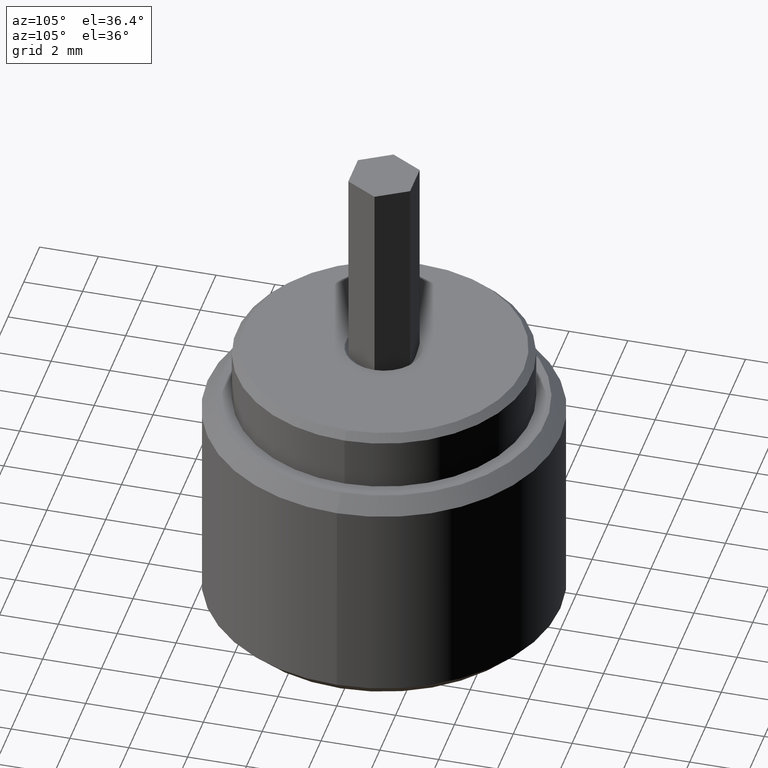
[diagram: clean part render]
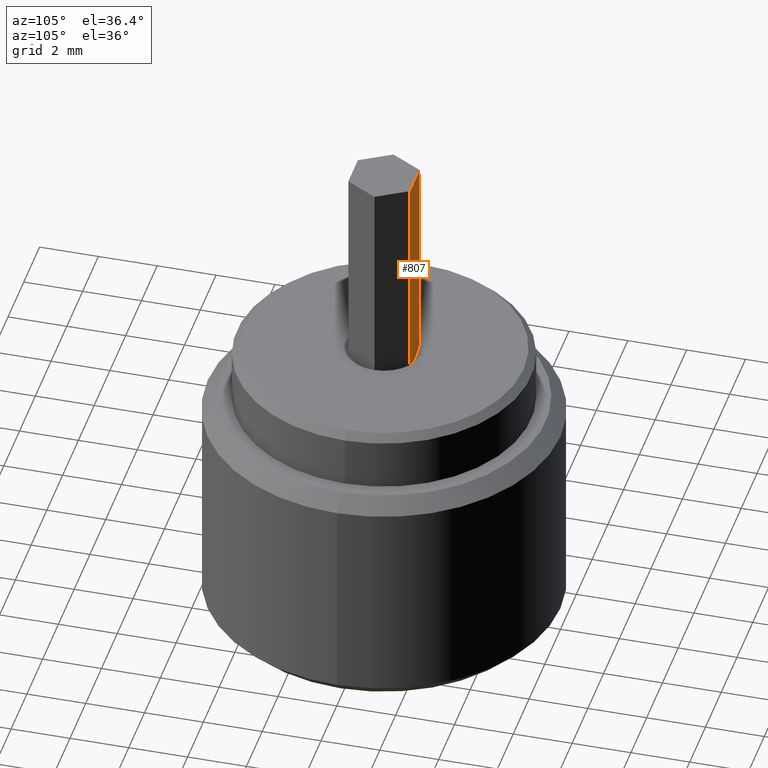
[diagram: same view with one face highlighted and labeled with its STEP entity id]
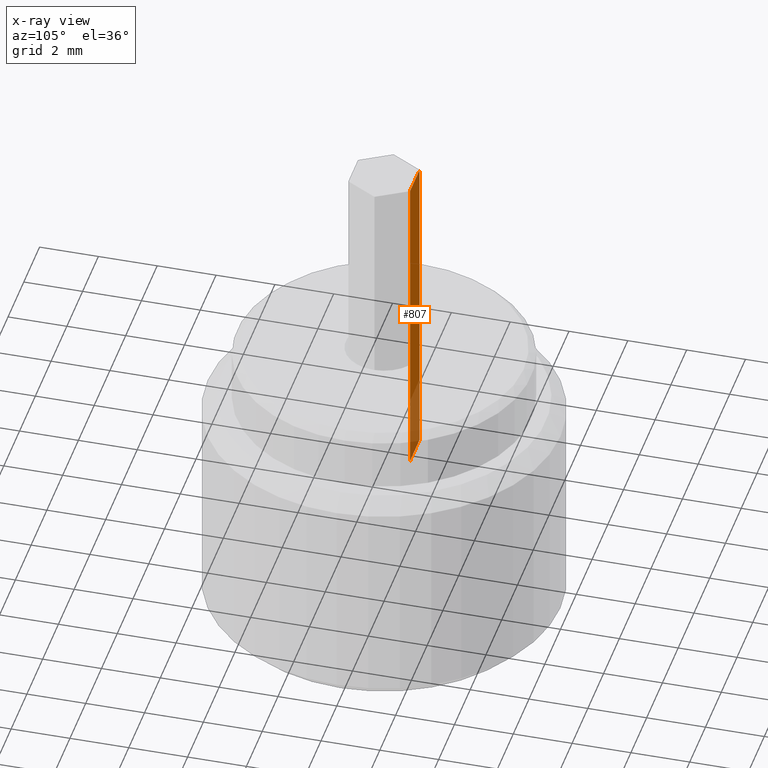
[diagram: x-ray of the same camera — body ghosted, the highlighted face saturated]
A machine part, auxiliary view. The second image highlights one B-rep face of the part: STEP entity #807.
The next image is the same camera in x-ray: the body ghosted, the highlighted face saturated — about 22% of this face is hidden behind the body in this view.
In plain terms, the highlighted planar face has unit normal (-0, -1, 0).
Its self-contained STEP definition (entity closure, byte-faithful):
#50 = CARTESIAN_POINT ( 'NONE',  ( 0.6062177826491099708, 1.049999999999998934, 17.00000000000000000 ) ) ;
#104 = CARTESIAN_POINT ( 'NONE',  ( -0.6062177826491047528, 1.050000000000001821, 6.000000000000000000 ) ) ;
#134 = DIRECTION ( 'NONE',  ( -0.000000000000000000, -0.000000000000000000, -1.000000000000000000 ) ) ;
#154 = LINE ( 'NONE', #232, #729 ) ;
#191 = CARTESIAN_POINT ( 'NONE',  ( 0.6062177826491099708, 1.049999999999998934, 17.00000000000000000 ) ) ;
#204 = VERTEX_POINT ( 'NONE', #571 ) ;
#232 = CARTESIAN_POINT ( 'NONE',  ( -0.6062177826491047528, 1.050000000000001821, 17.00000000000000000 ) ) ;
#237 = ORIENTED_EDGE ( 'NONE', *, *, #299, .F. ) ;
#261 = CARTESIAN_POINT ( 'NONE',  ( 0.6062177826491099708, 1.049999999999998934, 17.00000000000000000 ) ) ;
#296 = CARTESIAN_POINT ( 'NONE',  ( 0.6062177826491099708, 1.049999999999998934, 6.000000000000000000 ) ) ;
#299 = EDGE_CURVE ( 'NONE', #324, #204, #492, .T. ) ;
#309 = LINE ( 'NONE', #296, #648 ) ;
#324 = VERTEX_POINT ( 'NONE', #727 ) ;
#363 = LINE ( 'NONE', #50, #633 ) ;
#399 = DIRECTION ( 'NONE',  ( -2.503857664561931390E-15, -1.000000000000000000, 0.000000000000000000 ) ) ;
#492 = LINE ( 'NONE', #261, #678 ) ;
#536 = EDGE_CURVE ( 'NONE', #204, #927, #154, .T. ) ;
#562 = ORIENTED_EDGE ( 'NONE', *, *, #672, .T. ) ;
#571 = CARTESIAN_POINT ( 'NONE',  ( -0.6062177826491047528, 1.050000000000001821, 17.00000000000000000 ) ) ;
#616 = DIRECTION ( 'NONE',  ( -1.000000000000000000, 2.503857664561930996E-15, 0.000000000000000000 ) ) ;
#633 = VECTOR ( 'NONE', #134, 1000.000000000000000 ) ;
#637 = CARTESIAN_POINT ( 'NONE',  ( 0.6062177826491099708, 1.049999999999998934, 6.000000000000000000 ) ) ;
#648 = VECTOR ( 'NONE', #616, 1000.000000000000000 ) ;
#672 = EDGE_CURVE ( 'NONE', #873, #927, #309, .T. ) ;
#678 = VECTOR ( 'NONE', #793, 1000.000000000000000 ) ;
#679 = DIRECTION ( 'NONE',  ( -0.000000000000000000, -0.000000000000000000, -1.000000000000000000 ) ) ;
#702 = DIRECTION ( 'NONE',  ( 1.000000000000000000, -2.503857664561931390E-15, 0.000000000000000000 ) ) ;
#708 = PLANE ( 'NONE',  #809 ) ;
#727 = CARTESIAN_POINT ( 'NONE',  ( 0.6062177826491099708, 1.049999999999998934, 17.00000000000000000 ) ) ;
#729 = VECTOR ( 'NONE', #679, 1000.000000000000000 ) ;
#782 = ORIENTED_EDGE ( 'NONE', *, *, #536, .F. ) ;
#786 = FACE_OUTER_BOUND ( 'NONE', #891, .T. ) ;
#788 = ORIENTED_EDGE ( 'NONE', *, *, #986, .T. ) ;
#793 = DIRECTION ( 'NONE',  ( -1.000000000000000000, 2.503857664561930996E-15, 0.000000000000000000 ) ) ;
#807 = ADVANCED_FACE ( 'NONE', ( #786 ), #708, .F. ) ;
#809 = AXIS2_PLACEMENT_3D ( 'NONE', #191, #399, #702 ) ;
#873 = VERTEX_POINT ( 'NONE', #637 ) ;
#891 = EDGE_LOOP ( 'NONE', ( #562, #782, #237, #788 ) ) ;
#927 = VERTEX_POINT ( 'NONE', #104 ) ;
#986 = EDGE_CURVE ( 'NONE', #324, #873, #363, .T. ) ;